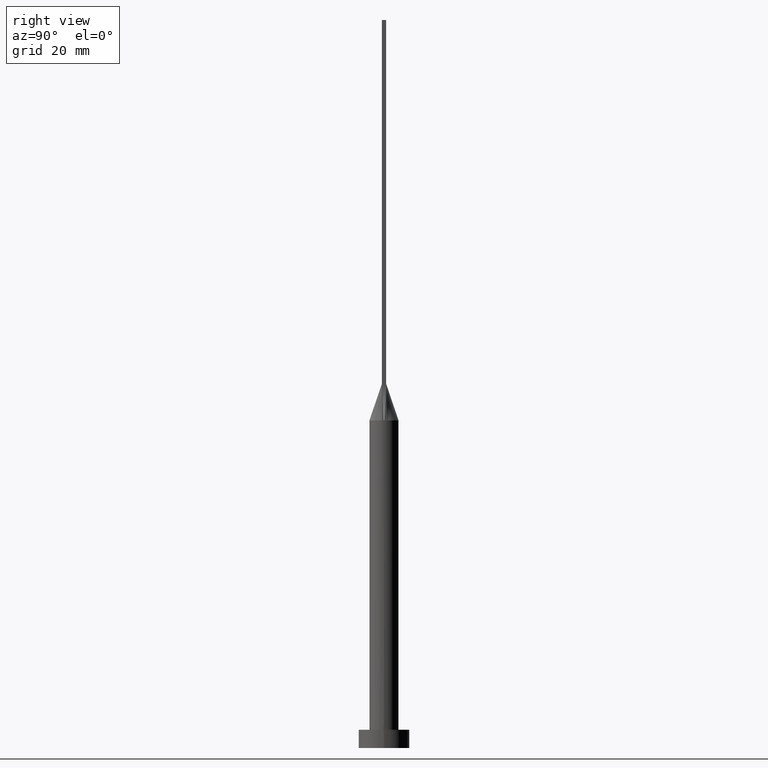
[diagram: clean part render]
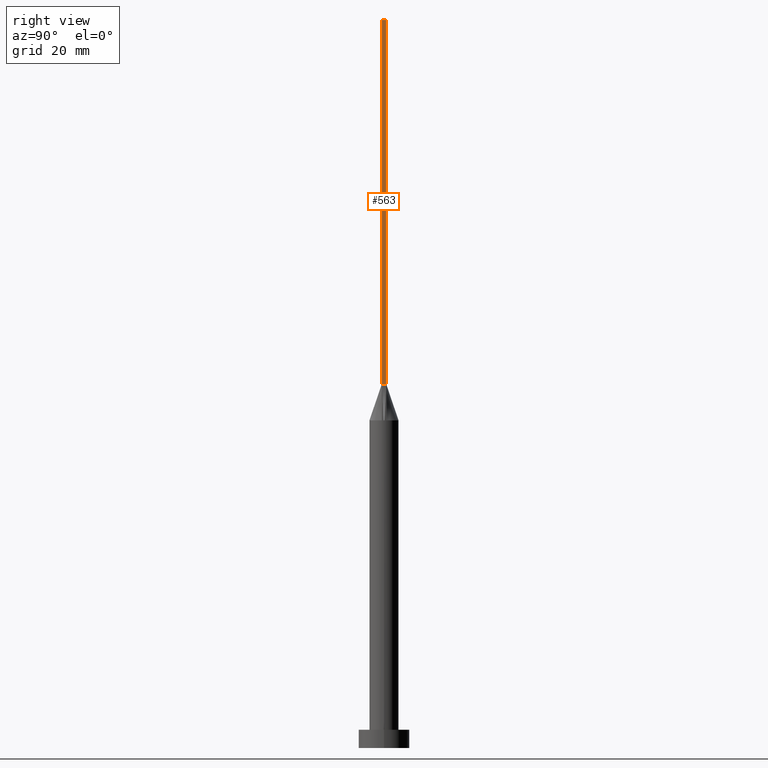
[diagram: same view with one face highlighted and labeled with its STEP entity id]
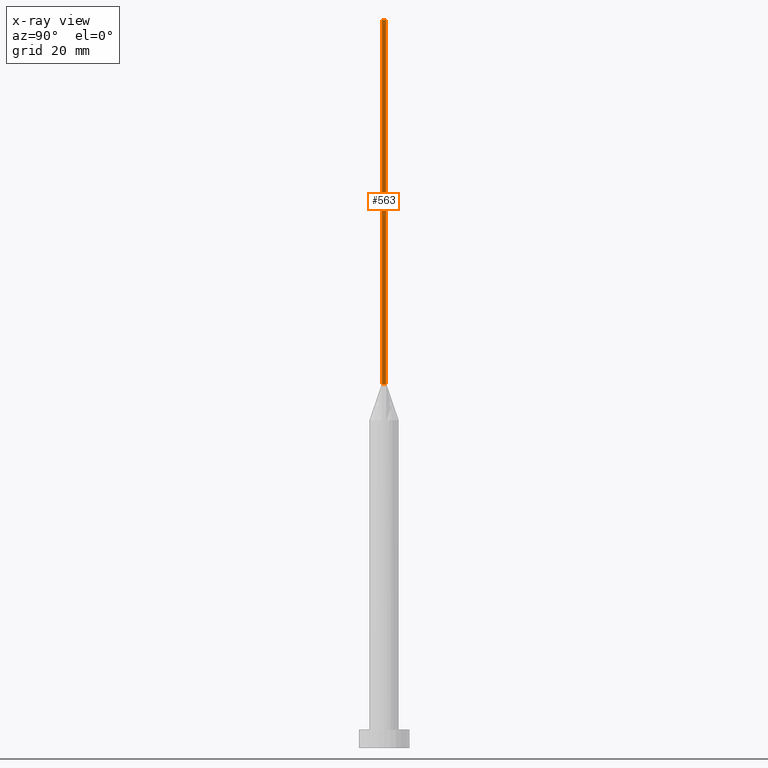
[diagram: x-ray of the same camera — body ghosted, the highlighted face saturated]
A machine part, right view. The second image highlights one B-rep face of the part: STEP entity #563.
The next image is the same camera in x-ray: the body ghosted, the highlighted face saturated — about 0% of this face is hidden behind the body in this view.
In plain terms, the highlighted planar face has unit normal (-1, 0, 0).
Its self-contained STEP definition (entity closure, byte-faithful):
#17 = FACE_OUTER_BOUND ( 'NONE', #232, .T. ) ;
#21 = VECTOR ( 'NONE', #63, 1000.000000000000000 ) ;
#25 = DIRECTION ( 'NONE',  ( 0.000000000000000000, 0.000000000000000000, 1.000000000000000000 ) ) ;
#37 = VECTOR ( 'NONE', #368, 1000.000000000000000 ) ;
#49 = VERTEX_POINT ( 'NONE', #345 ) ;
#55 = CARTESIAN_POINT ( 'NONE',  ( 3.750000000000000000, 0.6000000000000001998, 200.0000000000000000 ) ) ;
#63 = DIRECTION ( 'NONE',  ( -0.000000000000000000, -0.000000000000000000, -1.000000000000000000 ) ) ;
#70 = CARTESIAN_POINT ( 'NONE',  ( 3.750000000000000000, 0.6000000000000001998, 100.0000000000000000 ) ) ;
#71 = ORIENTED_EDGE ( 'NONE', *, *, #331, .T. ) ;
#83 = CARTESIAN_POINT ( 'NONE',  ( 3.750000000000000000, -0.5999999999999997558, 200.0000000000000000 ) ) ;
#100 = CARTESIAN_POINT ( 'NONE',  ( 3.750000000000000000, 0.6000000000000001998, 200.0000000000000000 ) ) ;
#134 = CARTESIAN_POINT ( 'NONE',  ( 3.750000000000000000, -0.5999999999999997558, 100.0000000000000000 ) ) ;
#150 = VERTEX_POINT ( 'NONE', #70 ) ;
#155 = VECTOR ( 'NONE', #417, 1000.000000000000000 ) ;
#232 = EDGE_LOOP ( 'NONE', ( #286, #545, #491, #71 ) ) ;
#234 = LINE ( 'NONE', #463, #37 ) ;
#236 = VERTEX_POINT ( 'NONE', #134 ) ;
#274 = CARTESIAN_POINT ( 'NONE',  ( 3.750000000000000000, 0.6000000000000001998, 100.0000000000000000 ) ) ;
#276 = LINE ( 'NONE', #551, #21 ) ;
#286 = ORIENTED_EDGE ( 'NONE', *, *, #387, .T. ) ;
#324 = LINE ( 'NONE', #55, #454 ) ;
#331 = EDGE_CURVE ( 'NONE', #49, #236, #276, .T. ) ;
#344 = AXIS2_PLACEMENT_3D ( 'NONE', #83, #376, #25 ) ;
#345 = CARTESIAN_POINT ( 'NONE',  ( 3.750000000000000000, -0.5999999999999997558, 200.0000000000000000 ) ) ;
#364 = LINE ( 'NONE', #274, #155 ) ;
#365 = VERTEX_POINT ( 'NONE', #100 ) ;
#366 = DIRECTION ( 'NONE',  ( -0.000000000000000000, -0.000000000000000000, -1.000000000000000000 ) ) ;
#368 = DIRECTION ( 'NONE',  ( 0.000000000000000000, 1.000000000000000000, 0.000000000000000000 ) ) ;
#375 = EDGE_CURVE ( 'NONE', #49, #365, #234, .T. ) ;
#376 = DIRECTION ( 'NONE',  ( -1.000000000000000000, 0.000000000000000000, 0.000000000000000000 ) ) ;
#387 = EDGE_CURVE ( 'NONE', #236, #150, #364, .T. ) ;
#417 = DIRECTION ( 'NONE',  ( -0.000000000000000000, 1.000000000000000000, -0.000000000000000000 ) ) ;
#454 = VECTOR ( 'NONE', #366, 1000.000000000000000 ) ;
#463 = CARTESIAN_POINT ( 'NONE',  ( 3.750000000000000000, -0.5999999999999997558, 200.0000000000000000 ) ) ;
#482 = PLANE ( 'NONE',  #344 ) ;
#491 = ORIENTED_EDGE ( 'NONE', *, *, #375, .F. ) ;
#514 = EDGE_CURVE ( 'NONE', #365, #150, #324, .T. ) ;
#545 = ORIENTED_EDGE ( 'NONE', *, *, #514, .F. ) ;
#551 = CARTESIAN_POINT ( 'NONE',  ( 3.750000000000000000, -0.5999999999999997558, 200.0000000000000000 ) ) ;
#563 = ADVANCED_FACE ( 'NONE', ( #17 ), #482, .F. ) ;